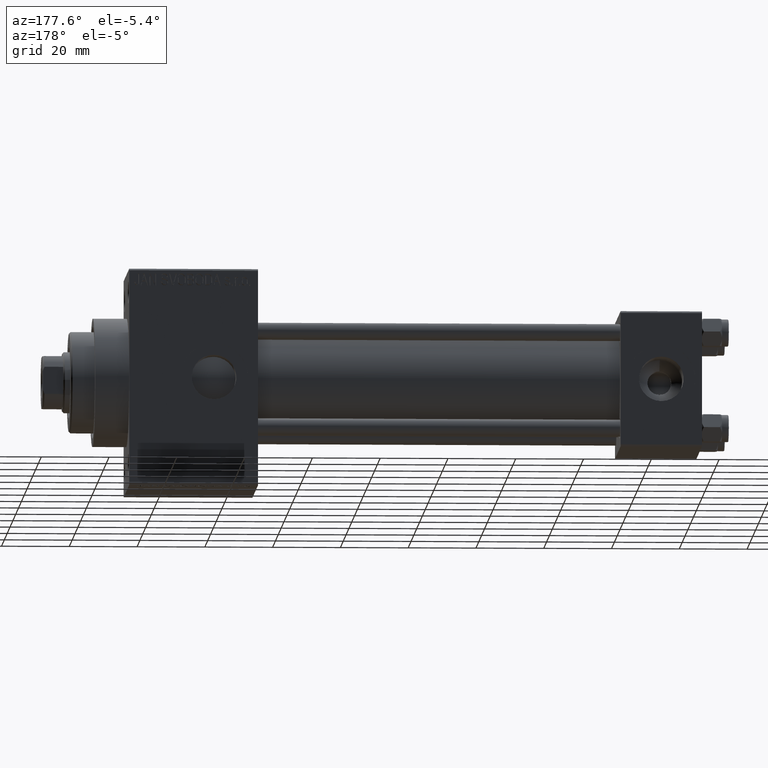
[diagram: clean part render]
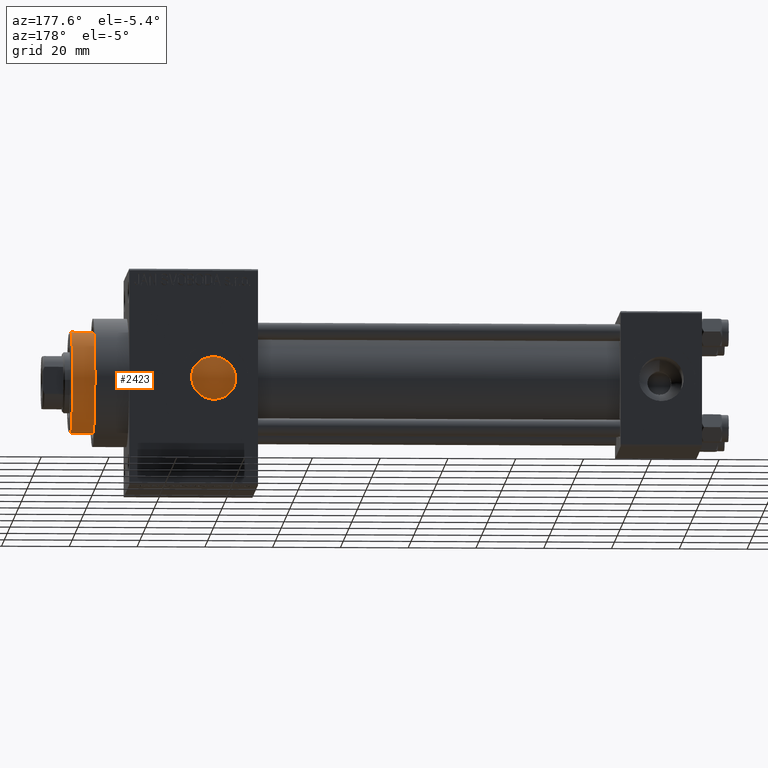
[diagram: same view with one face highlighted and labeled with its STEP entity id]
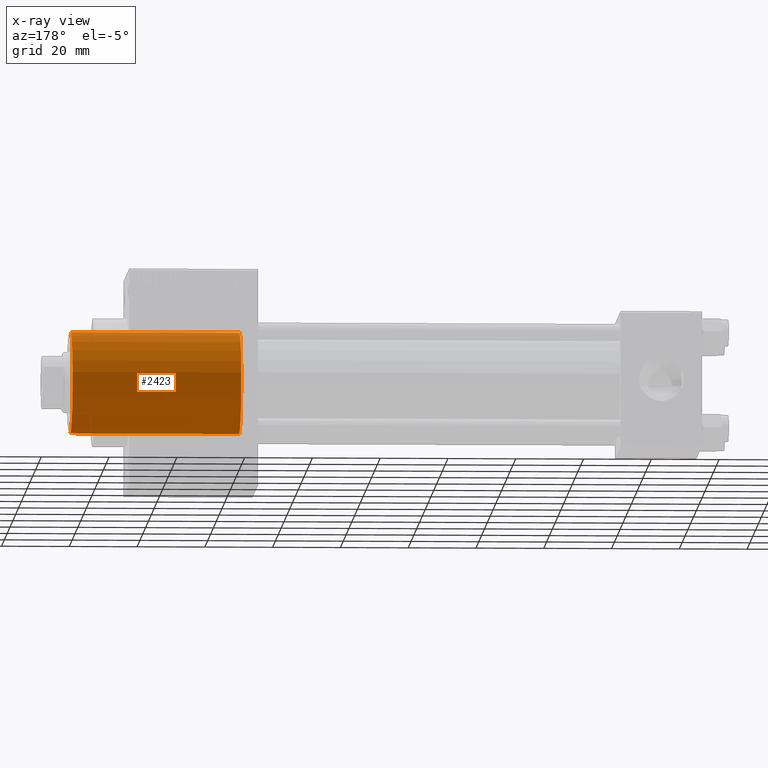
[diagram: x-ray of the same camera — body ghosted, the highlighted face saturated]
A machine part, auxiliary view. The second image highlights one B-rep face of the part: STEP entity #2423.
The next image is the same camera in x-ray: the body ghosted, the highlighted face saturated — about 0% of this face is hidden behind the body in this view.
In plain terms, the highlighted cylindrical surface (partial cylindrical patch) has radius 15 mm, axis along (-1, 0, 0).
Its self-contained STEP definition (entity closure, byte-faithful):
#461 = LINE ( 'NONE', #15721, #13011 ) ;
#2423 = ADVANCED_FACE ( 'NONE', ( #43653 ), #11059, .T. ) ;
#2693 = CARTESIAN_POINT ( 'NONE',  ( -15.00000000000000000, 0.000000000000000000, 43.25999999999999801 ) ) ;
#3495 = EDGE_CURVE ( 'NONE', #17746, #37069, #17518, .T. ) ;
#5288 = EDGE_CURVE ( 'NONE', #22004, #37069, #461, .T. ) ;
#8997 = CIRCLE ( 'NONE', #40029, 15.00000000000000000 ) ;
#11059 = CYLINDRICAL_SURFACE ( 'NONE', #45605, 15.00000000000000000 ) ;
#13011 = VECTOR ( 'NONE', #15009, 1000.000000000000000 ) ;
#13742 = AXIS2_PLACEMENT_3D ( 'NONE', #34051, #23322, #23777 ) ;
#14052 = EDGE_CURVE ( 'NONE', #29649, #17746, #45331, .T. ) ;
#14393 = CARTESIAN_POINT ( 'NONE',  ( 0.000000000000000000, 0.000000000000000000, 49.75999999999998380 ) ) ;
#14746 = VECTOR ( 'NONE', #39122, 1000.000000000000000 ) ;
#15009 = DIRECTION ( 'NONE',  ( -0.000000000000000000, -0.000000000000000000, -1.000000000000000000 ) ) ;
#15602 = ORIENTED_EDGE ( 'NONE', *, *, #5288, .F. ) ;
#15721 = CARTESIAN_POINT ( 'NONE',  ( 15.00000000000000000, 1.836970198721029589E-15, 43.25999999999999801 ) ) ;
#17518 = CIRCLE ( 'NONE', #13742, 15.00000000000000000 ) ;
#17746 = VERTEX_POINT ( 'NONE', #40161 ) ;
#18835 = CARTESIAN_POINT ( 'NONE',  ( -15.00000000000000000, 0.000000000000000000, 49.75999999999998380 ) ) ;
#20517 = ORIENTED_EDGE ( 'NONE', *, *, #14052, .T. ) ;
#22004 = VERTEX_POINT ( 'NONE', #45544 ) ;
#23322 = DIRECTION ( 'NONE',  ( 0.000000000000000000, 0.000000000000000000, 1.000000000000000000 ) ) ;
#23777 = DIRECTION ( 'NONE',  ( 1.000000000000000000, 0.000000000000000000, 0.000000000000000000 ) ) ;
#23817 = EDGE_LOOP ( 'NONE', ( #15602, #30832, #20517, #41936 ) ) ;
#25562 = DIRECTION ( 'NONE',  ( -0.000000000000000000, -0.000000000000000000, -1.000000000000000000 ) ) ;
#25707 = EDGE_CURVE ( 'NONE', #22004, #29649, #8997, .T. ) ;
#25806 = DIRECTION ( 'NONE',  ( 1.000000000000000000, 0.000000000000000000, 0.000000000000000000 ) ) ;
#29649 = VERTEX_POINT ( 'NONE', #18835 ) ;
#30832 = ORIENTED_EDGE ( 'NONE', *, *, #25707, .T. ) ;
#31752 = CARTESIAN_POINT ( 'NONE',  ( 0.000000000000000000, 0.000000000000000000, 43.25999999999999801 ) ) ;
#32404 = CARTESIAN_POINT ( 'NONE',  ( 15.00000000000000000, 1.836970198721029589E-15, 0.000000000000000000 ) ) ;
#34051 = CARTESIAN_POINT ( 'NONE',  ( 0.000000000000000000, 0.000000000000000000, 0.000000000000000000 ) ) ;
#37069 = VERTEX_POINT ( 'NONE', #32404 ) ;
#39122 = DIRECTION ( 'NONE',  ( -0.000000000000000000, -0.000000000000000000, -1.000000000000000000 ) ) ;
#40029 = AXIS2_PLACEMENT_3D ( 'NONE', #14393, #43893, #25806 ) ;
#40161 = CARTESIAN_POINT ( 'NONE',  ( -15.00000000000000000, 0.000000000000000000, 0.000000000000000000 ) ) ;
#41936 = ORIENTED_EDGE ( 'NONE', *, *, #3495, .T. ) ;
#43653 = FACE_OUTER_BOUND ( 'NONE', #23817, .T. ) ;
#43893 = DIRECTION ( 'NONE',  ( 0.000000000000000000, 0.000000000000000000, -1.000000000000000000 ) ) ;
#45331 = LINE ( 'NONE', #2693, #14746 ) ;
#45544 = CARTESIAN_POINT ( 'NONE',  ( 15.00000000000000000, 1.836970198721029589E-15, 49.75999999999998380 ) ) ;
#45605 = AXIS2_PLACEMENT_3D ( 'NONE', #31752, #25562, #46269 ) ;
#46269 = DIRECTION ( 'NONE',  ( -1.000000000000000000, 0.000000000000000000, 0.000000000000000000 ) ) ;